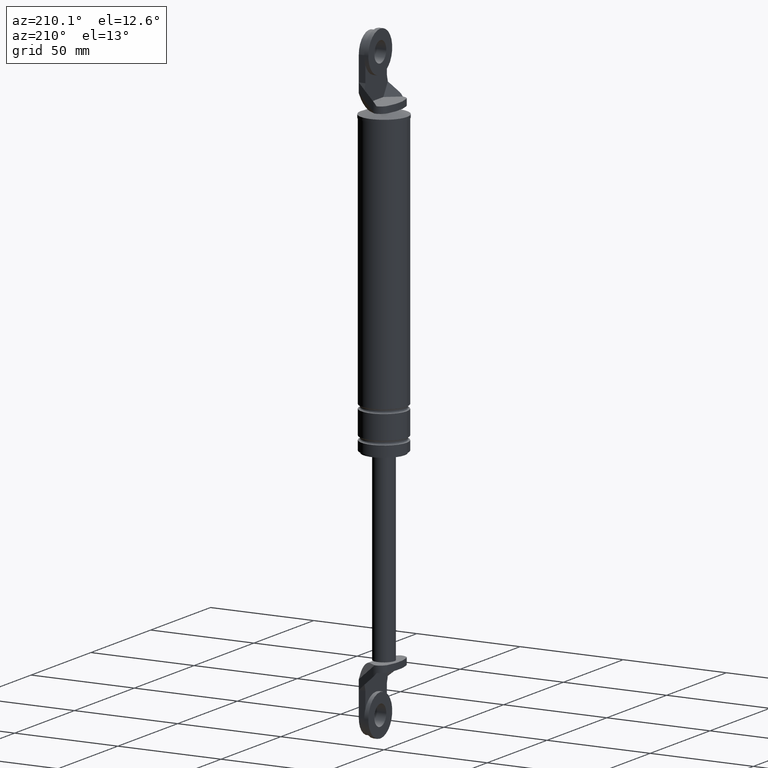
[diagram: clean part render]
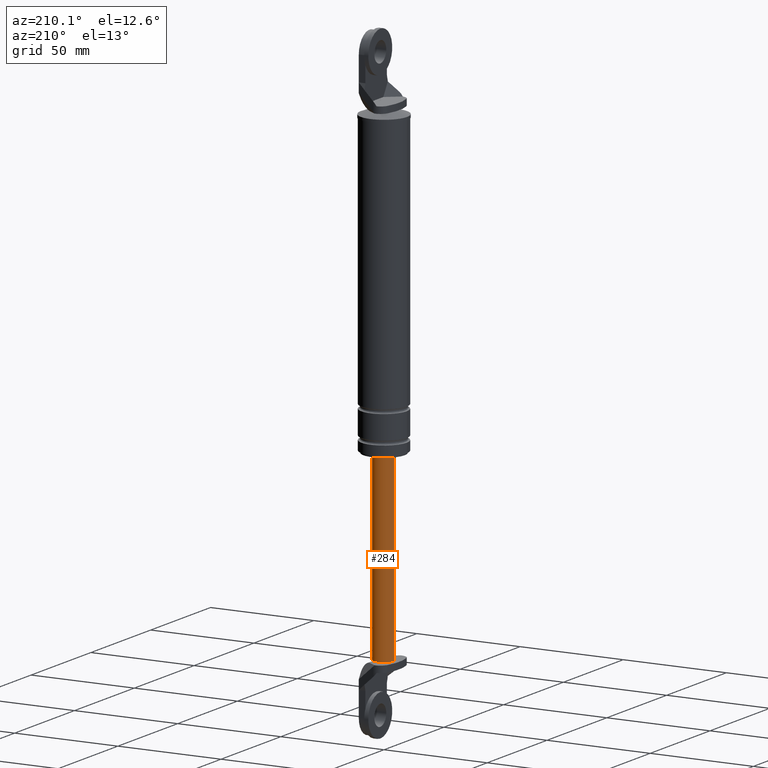
[diagram: same view with one face highlighted and labeled with its STEP entity id]
A machine part, auxiliary view. The second image highlights one B-rep face of the part: STEP entity #284.
In plain terms, the highlighted cylindrical surface (edge-blend (fillet) strip) has radius 5 mm, axis along (0, 0, 1).
Its self-contained STEP definition (entity closure, byte-faithful):
#284=ADVANCED_FACE('',(#1099),#1098,.T.);
#1098=CYLINDRICAL_SURFACE('',#1768,5.00000000000E+000);
#1099=FACE_OUTER_BOUND('',#1769,.T.);
#1765=CARTESIAN_POINT('',(0.00000000000E+000,3.58204186421E-014,0.00000000000E+000));
#1766=DIRECTION('',(-0.00000000000E+000,-0.00000000000E+000,1.00000000000E+000));
#1767=DIRECTION('',(-1.00000000000E+000,1.22464679915E-016,0.00000000000E+000));
#1768=AXIS2_PLACEMENT_3D('',#1765,#1766,#1767);
#1769=EDGE_LOOP('',(#2167,#2168,#2169,#2170,#2171));
#2167=ORIENTED_EDGE('',*,*,#2344,.F.);
#2168=ORIENTED_EDGE('',*,*,#2374,.F.);
#2169=ORIENTED_EDGE('',*,*,#2376,.T.);
#2170=ORIENTED_EDGE('',*,*,#2339,.F.);
#2171=ORIENTED_EDGE('',*,*,#2377,.F.);
#2339=EDGE_CURVE('',#3442,#3443,#3444,.T.);
#2344=EDGE_CURVE('',#3471,#3478,#3479,.T.);
#2374=EDGE_CURVE('',#3665,#3471,#3672,.T.);
#2376=EDGE_CURVE('',#3665,#3443,#3684,.T.);
#2377=EDGE_CURVE('',#3478,#3442,#3690,.T.);
#3442=VERTEX_POINT('',#4363);
#3443=VERTEX_POINT('',#4364);
#3444=CIRCLE('',#4368,5.00000000000E+000);
#3471=VERTEX_POINT('',#4383);
#3478=VERTEX_POINT('',#4387);
#3479=CIRCLE('',#4391,5.00000000000E+000);
#3665=VERTEX_POINT('',#4494);
#3672=CIRCLE('',#4502,5.00000000000E+000);
#3684=(BOUNDED_CURVE() B_SPLINE_CURVE(1,(#4506,#4507),.UNSPECIFIED.,.F.,.F.) B_SPLINE_CURVE_WITH_KNOTS((2,2),(8.33333332085E-002,9.16666666563E-001),.UNSPECIFIED.) CURVE() GEOMETRIC_REPRESENTATION_ITEM() RATIONAL_B_SPLINE_CURVE((1.00000000000E+000,1.00000000000E+000)) REPRESENTATION_ITEM('') );
#3690=(BOUNDED_CURVE() B_SPLINE_CURVE(1,(#4508,#4509),.UNSPECIFIED.,.F.,.F.) B_SPLINE_CURVE_WITH_KNOTS((2,2),(8.33333333333E-002,9.16666666667E-001),.UNSPECIFIED.) CURVE() GEOMETRIC_REPRESENTATION_ITEM() RATIONAL_B_SPLINE_CURVE((7.50000000000E-001,7.50000000000E-001)) REPRESENTATION_ITEM('') );
#4363=CARTESIAN_POINT('',(5.00000000000E+000,3.58204186421E-014,-5.90000150000E+001));
#4364=CARTESIAN_POINT('',(-5.00000000000E+000,3.58231962612E-014,-5.90000150000E+001));
#4365=CARTESIAN_POINT('',(0.00000000000E+000,3.58204186421E-014,-5.90000150000E+001));
#4366=DIRECTION('',(0.00000000000E+000,0.00000000000E+000,1.00000000000E+000));
#4367=DIRECTION('',(1.00000000000E+000,-1.22460635382E-016,0.00000000000E+000));
#4368=AXIS2_PLACEMENT_3D('',#4365,#4366,#4367);
#4383=CARTESIAN_POINT('',(2.00000000000E+000,4.58257569496E+000,-1.48000015000E+002));
#4387=CARTESIAN_POINT('',(5.00000000000E+000,2.22686622283E-006,-1.48000015000E+002));
#4388=CARTESIAN_POINT('',(0.00000000000E+000,3.58204186421E-014,-1.48000015000E+002));
#4389=DIRECTION('',(0.00000000000E+000,0.00000000000E+000,-1.00000000000E+000));
#4390=DIRECTION('',(4.00000000000E-001,9.16515138991E-001,0.00000000000E+000));
#4391=AXIS2_PLACEMENT_3D('',#4388,#4389,#4390);
#4494=CARTESIAN_POINT('',(-5.00000000000E+000,-1.92829151968E-008,-1.48000015000E+002));
#4499=CARTESIAN_POINT('',(0.00000000000E+000,3.58204186421E-014,-1.48000015000E+002));
#4500=DIRECTION('',(0.00000000000E+000,0.00000000000E+000,-1.00000000000E+000));
#4501=DIRECTION('',(1.00000000000E+000,-0.00000000000E+000,-0.00000000000E+000));
#4502=AXIS2_PLACEMENT_3D('',#4499,#4500,#4501);
#4506=CARTESIAN_POINT('',(-5.00000000000E+000,3.64327420417E-014,-1.48000015013E+002));
#4507=CARTESIAN_POINT('',(-5.00000000000E+000,3.64327420417E-014,-5.90000150111E+001));
#4508=CARTESIAN_POINT('',(5.00000000000E+000,3.55271367880E-014,-1.48000015000E+002));
#4509=CARTESIAN_POINT('',(5.00000000000E+000,3.55271367880E-014,-5.90000150000E+001));